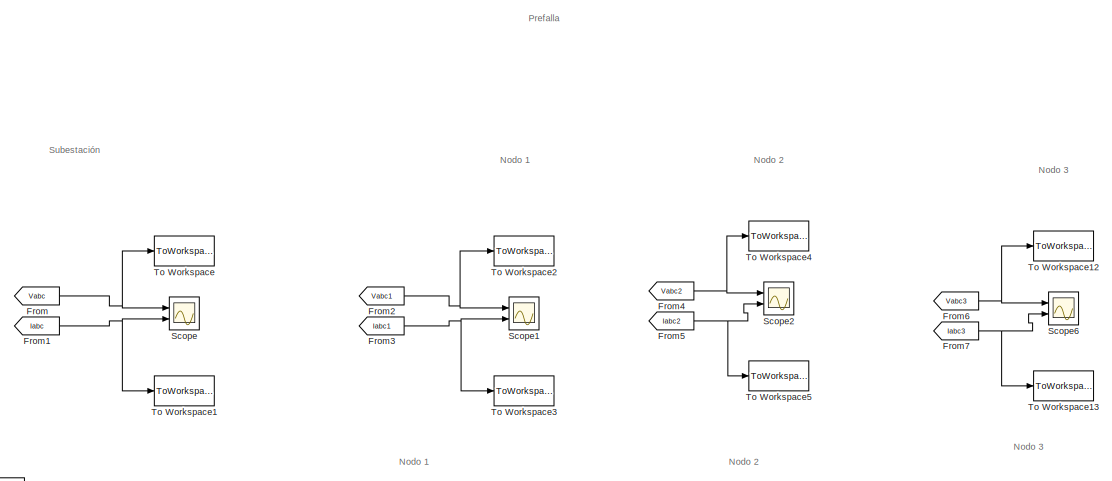
[diagram: root canvas - part 1/5, top center region]
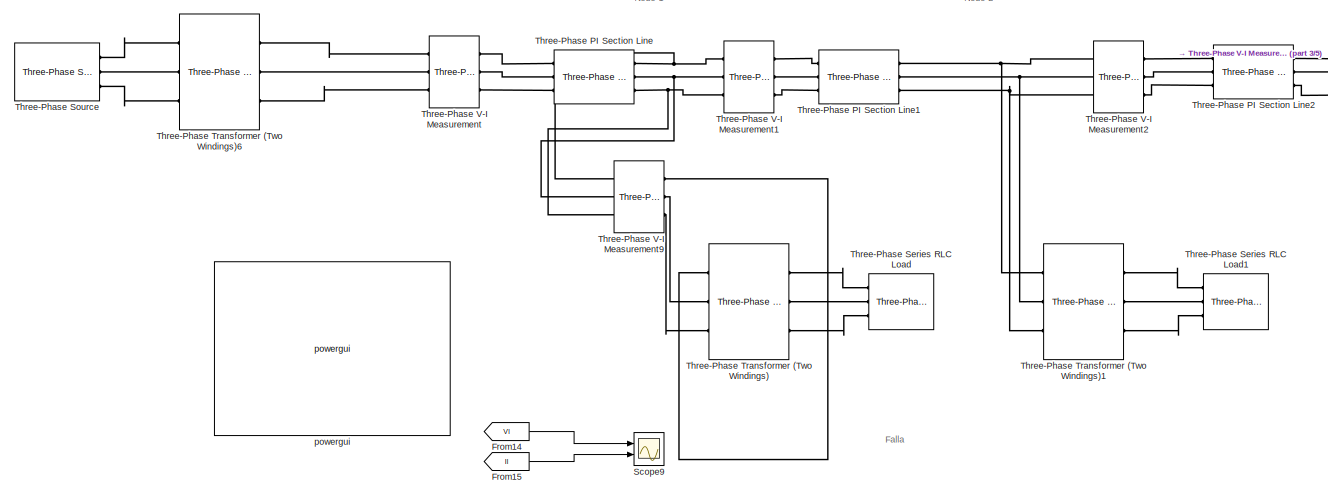
[diagram: root canvas - part 2/5, middle left region]
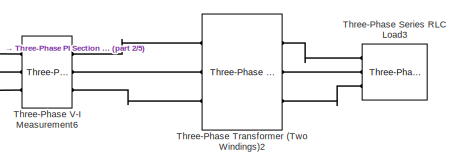
[diagram: root canvas - part 3/5, top right region]
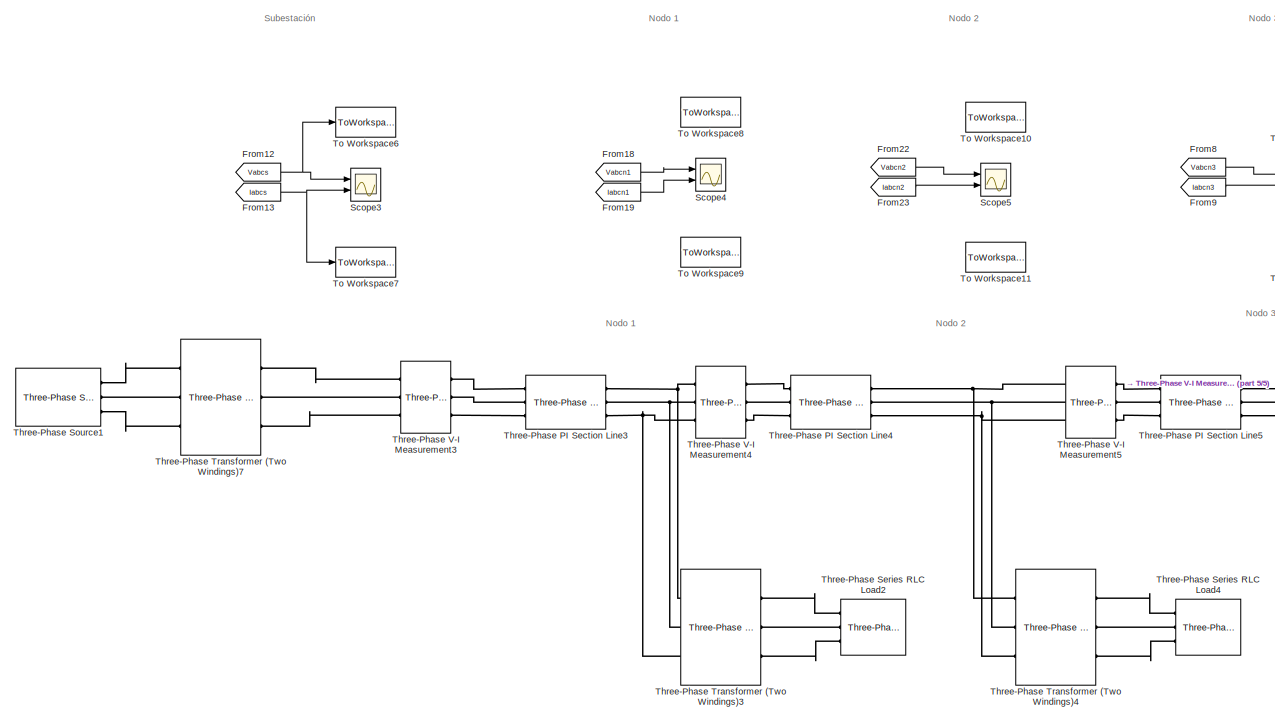
[diagram: root canvas - part 4/5, bottom center region]
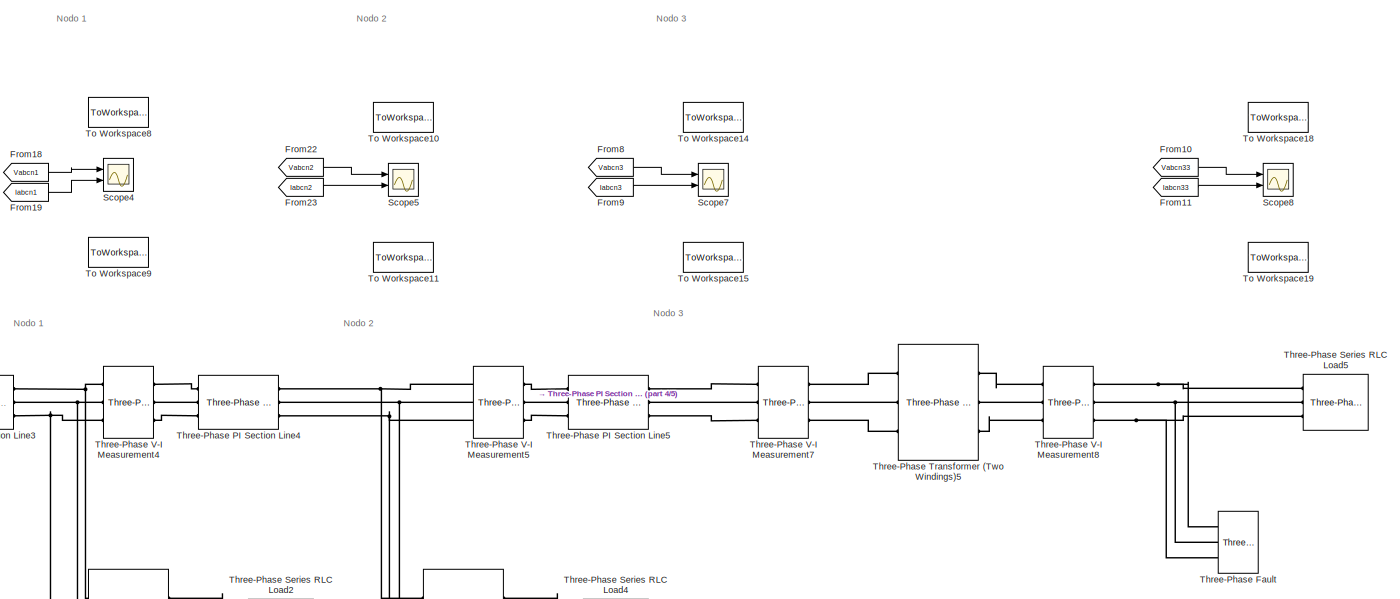
[diagram: root canvas - part 5/5, bottom center region]
MODEL slx_f9ede1e05f8c
KIND model
CONFIG AbsTol = auto
CONFIG FixedStep = auto
CONFIG MaxStep = auto
CONFIG MinStep = auto
CONFIG RelTol = 1e-3
CONFIG SampleTimeConstraint = Unconstrained
CONFIG Solver = ode45
CONFIG SolverMode = Auto
CONFIG SolverName = ode45
CONFIG StartTime = 0.0
CONFIG StopTime = 0.32
BLOCK [From] From
  GotoTag = Vabc
  TagVisibility = global
BLOCK [From] From1
  GotoTag = Iabc
  TagVisibility = global
BLOCK [From] From10
  GotoTag = Vabcn33
  TagVisibility = global
BLOCK [From] From11
  GotoTag = Iabcn33
  TagVisibility = global
BLOCK [From] From12
  GotoTag = Vabcs
  TagVisibility = global
BLOCK [From] From13
  GotoTag = Iabcs
  TagVisibility = global
BLOCK [From] From14
  GotoTag = Vl
  TagVisibility = global
BLOCK [From] From15
  GotoTag = Il
  TagVisibility = global
BLOCK [From] From18
  GotoTag = Vabcn1
  TagVisibility = global
BLOCK [From] From19
  GotoTag = Iabcn1
  TagVisibility = global
BLOCK [From] From2
  GotoTag = Vabc1
  TagVisibility = global
BLOCK [From] From22
  GotoTag = Vabcn2
  TagVisibility = global
BLOCK [From] From23
  GotoTag = Iabcn2
  TagVisibility = global
BLOCK [From] From3
  GotoTag = Iabc1
  TagVisibility = global
BLOCK [From] From4
  GotoTag = Vabc2
  TagVisibility = global
BLOCK [From] From5
  GotoTag = Iabc2
  TagVisibility = global
BLOCK [From] From6
  GotoTag = Vabc3
  TagVisibility = global
BLOCK [From] From7
  GotoTag = Iabc3
  TagVisibility = global
BLOCK [From] From8
  GotoTag = Vabcn3
  TagVisibility = global
BLOCK [From] From9
  GotoTag = Iabcn3
  TagVisibility = global
BLOCK [Scope] Scope
  Floating = off
  NumInputPorts = 2
  Ports = [2]
  TickLabels = on
  YMax = 120000~175
  YMin = -120000~-175
BLOCK [Scope] Scope1
  Floating = off
  NumInputPorts = 2
  Ports = [2]
  SaveName = ScopeData1
  TickLabels = on
  YMax = 5~5
  YMin = -5~-5
BLOCK [Scope] Scope2
  Floating = off
  NumInputPorts = 2
  Ports = [2]
  SaveName = ScopeData2
  TickLabels = on
  YMax = 5~5
  YMin = -5~-5
BLOCK [Scope] Scope3
  Floating = off
  NumInputPorts = 2
  Ports = [2]
  SaveName = ScopeData3
  TickLabels = on
  TimeRange = 0.008286453129078095
  YMax = 109317.9377013964~5
  YMin = 103212.4484142688~-4
BLOCK [Scope] Scope4
  Floating = off
  NumInputPorts = 2
  Ports = [2]
  SaveName = ScopeData4
  TickLabels = on
  YMax = 5~5
  YMin = -5~-5
BLOCK [Scope] Scope5
  Floating = off
  NumInputPorts = 2
  Ports = [2]
  SaveName = ScopeData5
  TickLabels = on
  YMax = 5~5
  YMin = -5~-5
BLOCK [Scope] Scope6
  Floating = off
  NumInputPorts = 2
  Ports = [2]
  SaveName = ScopeData6
  TickLabels = on
  YMax = 5~5
  YMin = -5~-5
BLOCK [Scope] Scope7
  Floating = off
  NumInputPorts = 2
  Ports = [2]
  SaveName = ScopeData7
  TickLabels = on
  YMax = 5~5
  YMin = -5~-5
  ZoomMode = xonly
BLOCK [Scope] Scope8
  Floating = off
  NumInputPorts = 2
  Ports = [2]
  SaveName = ScopeData8
  TickLabels = on
  YMax = 5~5
  YMin = -5~-5
  ZoomMode = xonly
BLOCK [Scope] Scope9
  Floating = off
  NumInputPorts = 2
  Ports = [2]
  SaveName = ScopeData9
  TickLabels = on
  YMax = 5~5
  YMin = -5~-5
BLOCK [Reference] Three-Phase Fault  REF=powerlib/Elements/Three-Phase Fault
  External = off
  FaultA = on
  FaultB = off
  FaultC = off
  FaultResistance = 0.01
  GroundFault = on
  GroundResistance = 0.01
  InitialStates = 0
  Measurements = Fault currents
  Ports = [0, 0, 0, 0, 0, 3]
  SnubberCapacitance = inf
  SnubberResistance = 1e6
  SourceBlock = powerlib/Elements/Three-Phase Fault
  SourceType = Three-Phase Fault
  SwitchStatus = NaN
  SwitchTimes = [0.05  0.30]
BLOCK [Reference] Three-Phase PI Section Line  REF=powerlib/Elements/Three-Phase
PI Section Line
  AttributesFormatString = \n
  Capacitances = [12.74e-9 7.751e-9]
  Frequency = 60
  Inductances = [ 0.9337e-3  4.1264e-3]
  LConnTagsString = a|b|c
  Length = 2
  Ports = [0, 0, 0, 0, 0, 3, 3]
  RConnTagsString = A|B|C
  Resistances = [ 0.01273 0.3864]
  SourceBlock = powerlib/Elements/Three-Phase\nPI Section Line
  SourceType = Three-Phase PI Section Line
BLOCK [Reference] Three-Phase PI Section Line1  REF=powerlib/Elements/Three-Phase
PI Section Line
  AttributesFormatString = \n
  Capacitances = [12.74e-9 7.751e-9]
  Frequency = 60
  Inductances = [ 0.9337e-3  4.1264e-3]
  LConnTagsString = a|b|c
  Length = 1
  Ports = [0, 0, 0, 0, 0, 3, 3]
  RConnTagsString = A|B|C
  Resistances = [ 0.01273 0.3864]
  SourceBlock = powerlib/Elements/Three-Phase\nPI Section Line
  SourceType = Three-Phase PI Section Line
BLOCK [Reference] Three-Phase PI Section Line2  REF=powerlib/Elements/Three-Phase
PI Section Line
  AttributesFormatString = \n
  Capacitances = [12.74e-9 7.751e-9]
  Frequency = 60
  Inductances = [ 0.9337e-3  4.1264e-3]
  LConnTagsString = a|b|c
  Length = 1.5
  Ports = [0, 0, 0, 0, 0, 3, 3]
  RConnTagsString = A|B|C
  Resistances = [ 0.01273 0.3864]
  SourceBlock = powerlib/Elements/Three-Phase\nPI Section Line
  SourceType = Three-Phase PI Section Line
BLOCK [Reference] Three-Phase PI Section Line3  REF=powerlib/Elements/Three-Phase
PI Section Line
  AttributesFormatString = \n
  Capacitances = [12.74e-9 7.751e-9]
  Frequency = 60
  Inductances = [ 0.9337e-3  4.1264e-3]
  LConnTagsString = a|b|c
  Length = 2
  Ports = [0, 0, 0, 0, 0, 3, 3]
  RConnTagsString = A|B|C
  Resistances = [ 0.01273 0.3864]
  SourceBlock = powerlib/Elements/Three-Phase\nPI Section Line
  SourceType = Three-Phase PI Section Line
BLOCK [Reference] Three-Phase PI Section Line4  REF=powerlib/Elements/Three-Phase
PI Section Line
  AttributesFormatString = \n
  Capacitances = [12.74e-9 7.751e-9]
  Frequency = 60
  Inductances = [ 0.9337e-3  4.1264e-3]
  LConnTagsString = a|b|c
  Length = 1
  Ports = [0, 0, 0, 0, 0, 3, 3]
  RConnTagsString = A|B|C
  Resistances = [ 0.01273 0.3864]
  SourceBlock = powerlib/Elements/Three-Phase\nPI Section Line
  SourceType = Three-Phase PI Section Line
BLOCK [Reference] Three-Phase PI Section Line5  REF=powerlib/Elements/Three-Phase
PI Section Line
  AttributesFormatString = \n
  Capacitances = [12.74e-9 7.751e-9]
  Frequency = 60
  Inductances = [ 0.9337e-3  4.1264e-3]
  LConnTagsString = a|b|c
  Length = 1.5
  Ports = [0, 0, 0, 0, 0, 3, 3]
  RConnTagsString = A|B|C
  Resistances = [ 0.01273 0.3864]
  SourceBlock = powerlib/Elements/Three-Phase\nPI Section Line
  SourceType = Three-Phase PI Section Line
BLOCK [Reference] Three-Phase Series RLC Load  REF=powerlib/Elements/Three-Phase
Series RLC Load
  ActivePower = 75e3
  AttributesFormatString = \n
  CapacitivePower = 100
  Configuration = Y (grounded)
  InductivePower = 100
  LConnTagsString = A|B|C
  LoadType = constant Z
  Measurements = None
  NominalFrequency = 60
  NominalVoltage = 13800
  Ports = [0, 0, 0, 0, 0, 3]
  SourceBlock = powerlib/Elements/Three-Phase\nSeries RLC Load
  SourceType = Three-Phase Series RLC Load
BLOCK [Reference] Three-Phase Series RLC Load1  REF=powerlib/Elements/Three-Phase
Series RLC Load
  ActivePower = 75e3
  AttributesFormatString = \n
  CapacitivePower = 100
  Configuration = Y (grounded)
  InductivePower = 100
  LConnTagsString = A|B|C
  LoadType = constant Z
  Measurements = None
  NominalFrequency = 60
  NominalVoltage = 13800
  Ports = [0, 0, 0, 0, 0, 3]
  SourceBlock = powerlib/Elements/Three-Phase\nSeries RLC Load
  SourceType = Three-Phase Series RLC Load
BLOCK [Reference] Three-Phase Series RLC Load2  REF=powerlib/Elements/Three-Phase
Series RLC Load
  ActivePower = 75e3
  AttributesFormatString = \n
  CapacitivePower = 100
  Configuration = Y (grounded)
  InductivePower = 100
  LConnTagsString = A|B|C
  LoadType = constant Z
  Measurements = None
  NominalFrequency = 60
  NominalVoltage = 13800
  Ports = [0, 0, 0, 0, 0, 3]
  SourceBlock = powerlib/Elements/Three-Phase\nSeries RLC Load
  SourceType = Three-Phase Series RLC Load
BLOCK [Reference] Three-Phase Series RLC Load3  REF=powerlib/Elements/Three-Phase
Series RLC Load
  ActivePower = 75e3
  AttributesFormatString = \n
  CapacitivePower = 100
  Configuration = Y (grounded)
  InductivePower = 100
  LConnTagsString = A|B|C
  LoadType = constant Z
  Measurements = None
  NominalFrequency = 60
  NominalVoltage = 13800
  Ports = [0, 0, 0, 0, 0, 3]
  SourceBlock = powerlib/Elements/Three-Phase\nSeries RLC Load
  SourceType = Three-Phase Series RLC Load
BLOCK [Reference] Three-Phase Series RLC Load4  REF=powerlib/Elements/Three-Phase
Series RLC Load
  ActivePower = 75e3
  AttributesFormatString = \n
  CapacitivePower = 100
  Configuration = Y (grounded)
  InductivePower = 100
  LConnTagsString = A|B|C
  LoadType = constant Z
  Measurements = None
  NominalFrequency = 60
  NominalVoltage = 13800
  Ports = [0, 0, 0, 0, 0, 3]
  SourceBlock = powerlib/Elements/Three-Phase\nSeries RLC Load
  SourceType = Three-Phase Series RLC Load
BLOCK [Reference] Three-Phase Series RLC Load5  REF=powerlib/Elements/Three-Phase
Series RLC Load
  ActivePower = 75e3
  AttributesFormatString = \n
  CapacitivePower = 100
  Configuration = Y (grounded)
  InductivePower = 100
  LConnTagsString = A|B|C
  LoadType = constant Z
  Measurements = None
  NominalFrequency = 60
  NominalVoltage = 13800
  Ports = [0, 0, 0, 0, 0, 3]
  SourceBlock = powerlib/Elements/Three-Phase\nSeries RLC Load
  SourceType = Three-Phase Series RLC Load
BLOCK [Reference] Three-Phase Source  REF=powerlib/Electrical
Sources/Three-Phase Source
  BaseVoltage = 13.8
  BusType = swing
  Frequency = 60
  Inductance = 16.58e-3
  InternalConnection = Yg
  PhaseAngle = 0
  Ports = [0, 0, 0, 0, 0, 0, 3]
  Pref = 0
  Qmax = inf
  Qmin = -inf
  Qref = 0
  Resistance = 0.8929
  ShortCircuitLevel = 270e3
  SourceBlock = powerlib/Electrical\nSources/Three-Phase Source
  SourceType = Three-Phase Source
  SpecifyImpedance = on
  Voltage = 13.8e3
  XRratio = 7
BLOCK [Reference] Three-Phase Source1  REF=powerlib/Electrical
Sources/Three-Phase Source
  BaseVoltage = 13.8
  BusType = swing
  Frequency = 60
  Inductance = 16.58e-3
  InternalConnection = Yg
  PhaseAngle = 0
  Ports = [0, 0, 0, 0, 0, 0, 3]
  Pref = 0
  Qmax = inf
  Qmin = -inf
  Qref = 0
  Resistance = 0.8929
  ShortCircuitLevel = 100e6
  SourceBlock = powerlib/Electrical\nSources/Three-Phase Source
  SourceType = Three-Phase Source
  SpecifyImpedance = on
  Voltage = 13.8e3
  XRratio = 7
BLOCK [Reference] Three-Phase Transformer (Two Windings)  REF=powerlib/Elements/Three-Phase
Transformer
(Two Windings)
  BreakLoop = off
  CoreType = Three single-phase transformers
  DataFile = 'hysteresis'
  DataType = off
  Hysteresis = off
  InitialFluxes = [ 0.8 , -0.8 , 0.7 ]
  L0 = 0.5
  Lm = 500
  Measurements = None
  MoreParameters = off
  NominalPower = [ 75e3 , 60 ]
  Ports = [0, 0, 0, 0, 0, 3, 3]
  Rm = 500
  Saturation = [ 0,0 ; 0.0024,1.2 ; 1.0,1.52 ]
  SetInitialFlux = off
  SetSaturation = off
  SourceBlock = powerlib/Elements/Three-Phase\nTransformer\n(Two Windings)
  SourceType = Three-Phase Transformer (Two Windings)
  TransfoNumber = 1
  UNITS = pu
  Winding1 = [ 115e3 , 0.002 , 0.08 ]
  Winding1Connection = Yg
  Winding2 = [ 13.8e3 , 0.002 , 0.08 ]
  Winding2Connection = Yg
BLOCK [Reference] Three-Phase Transformer (Two Windings)1  REF=powerlib/Elements/Three-Phase
Transformer
(Two Windings)
  BreakLoop = off
  CoreType = Three single-phase transformers
  DataFile = 'hysteresis'
  DataType = off
  Hysteresis = off
  InitialFluxes = [ 0.8 , -0.8 , 0.7 ]
  L0 = 0.5
  Lm = 500
  Measurements = None
  MoreParameters = off
  NominalPower = [ 75e3 , 60 ]
  Ports = [0, 0, 0, 0, 0, 3, 3]
  Rm = 500
  Saturation = [ 0,0 ; 0.0024,1.2 ; 1.0,1.52 ]
  SetInitialFlux = off
  SetSaturation = off
  SourceBlock = powerlib/Elements/Three-Phase\nTransformer\n(Two Windings)
  SourceType = Three-Phase Transformer (Two Windings)
  TransfoNumber = 1
  UNITS = pu
  Winding1 = [ 115e3 , 0.002 , 0.08 ]
  Winding1Connection = Yg
  Winding2 = [ 13.8e3 , 0.002 , 0.08 ]
  Winding2Connection = Yg
BLOCK [Reference] Three-Phase Transformer (Two Windings)2  REF=powerlib/Elements/Three-Phase
Transformer
(Two Windings)
  BreakLoop = off
  CoreType = Three single-phase transformers
  DataFile = 'hysteresis'
  DataType = off
  Hysteresis = off
  InitialFluxes = [ 0.8 , -0.8 , 0.7 ]
  L0 = 0.5
  Lm = 500
  Measurements = None
  MoreParameters = off
  NominalPower = [ 75e3 , 60 ]
  Ports = [0, 0, 0, 0, 0, 3, 3]
  Rm = 500
  Saturation = [ 0,0 ; 0.0024,1.2 ; 1.0,1.52 ]
  SetInitialFlux = off
  SetSaturation = off
  SourceBlock = powerlib/Elements/Three-Phase\nTransformer\n(Two Windings)
  SourceType = Three-Phase Transformer (Two Windings)
  TransfoNumber = 1
  UNITS = pu
  Winding1 = [ 115e3 , 0.002 , 0.08 ]
  Winding1Connection = Yg
  Winding2 = [ 13.8e3 , 0.002 , 0.08 ]
  Winding2Connection = Yg
BLOCK [Reference] Three-Phase Transformer (Two Windings)3  REF=powerlib/Elements/Three-Phase
Transformer
(Two Windings)
  BreakLoop = off
  CoreType = Three single-phase transformers
  DataFile = 'hysteresis'
  DataType = off
  Hysteresis = off
  InitialFluxes = [ 0.8 , -0.8 , 0.7 ]
  L0 = 0.5
  Lm = 500
  Measurements = None
  MoreParameters = off
  NominalPower = [ 75e3 , 60 ]
  Ports = [0, 0, 0, 0, 0, 3, 3]
  Rm = 500
  Saturation = [ 0,0 ; 0.0024,1.2 ; 1.0,1.52 ]
  SetInitialFlux = off
  SetSaturation = off
  SourceBlock = powerlib/Elements/Three-Phase\nTransformer\n(Two Windings)
  SourceType = Three-Phase Transformer (Two Windings)
  TransfoNumber = 1
  UNITS = pu
  Winding1 = [ 115e3 , 0.002 , 0.08 ]
  Winding1Connection = Yg
  Winding2 = [ 13.8e3 , 0.002 , 0.08 ]
  Winding2Connection = Yg
BLOCK [Reference] Three-Phase Transformer (Two Windings)4  REF=powerlib/Elements/Three-Phase
Transformer
(Two Windings)
  BreakLoop = off
  CoreType = Three single-phase transformers
  DataFile = 'hysteresis'
  DataType = off
  Hysteresis = off
  InitialFluxes = [ 0.8 , -0.8 , 0.7 ]
  L0 = 0.5
  Lm = 500
  Measurements = None
  MoreParameters = off
  NominalPower = [ 75e3, 60 ]
  Ports = [0, 0, 0, 0, 0, 3, 3]
  Rm = 500
  Saturation = [ 0,0 ; 0.0024,1.2 ; 1.0,1.52 ]
  SetInitialFlux = off
  SetSaturation = off
  SourceBlock = powerlib/Elements/Three-Phase\nTransformer\n(Two Windings)
  SourceType = Three-Phase Transformer (Two Windings)
  TransfoNumber = 1
  UNITS = pu
  Winding1 = [ 115e3 , 0.002 , 0.08 ]
  Winding1Connection = Yg
  Winding2 = [ 13.8e3 , 0.002 , 0.08 ]
  Winding2Connection = Yg
BLOCK [Reference] Three-Phase Transformer (Two Windings)5  REF=powerlib/Elements/Three-Phase
Transformer
(Two Windings)
  BreakLoop = off
  CoreType = Three single-phase transformers
  DataFile = 'hysteresis'
  DataType = off
  Hysteresis = off
  InitialFluxes = [ 0.8 , -0.8 , 0.7 ]
  L0 = 0.5
  Lm = 500
  Measurements = None
  MoreParameters = off
  NominalPower = [ 75e3 , 60 ]
  Ports = [0, 0, 0, 0, 0, 3, 3]
  Rm = 500
  Saturation = [ 0,0 ; 0.0024,1.2 ; 1.0,1.52 ]
  SetInitialFlux = off
  SetSaturation = off
  SourceBlock = powerlib/Elements/Three-Phase\nTransformer\n(Two Windings)
  SourceType = Three-Phase Transformer (Two Windings)
  TransfoNumber = 1
  UNITS = pu
  Winding1 = [ 115e3 , 0.002 , 0.08 ]
  Winding1Connection = Yg
  Winding2 = [ 13.8e3 , 0.002 , 0.08 ]
  Winding2Connection = Yg
BLOCK [Reference] Three-Phase Transformer (Two Windings)6  REF=powerlib/Elements/Three-Phase
Transformer
(Two Windings)
  BreakLoop = off
  CoreType = Three single-phase transformers
  DataFile = 'hysteresis'
  DataType = off
  Hysteresis = off
  InitialFluxes = [ 0.8 , -0.8 , 0.7 ]
  L0 = 0.5
  Lm = 500
  Measurements = None
  MoreParameters = off
  NominalPower = [270e3 , 60 ]
  Ports = [0, 0, 0, 0, 0, 3, 3]
  Rm = 500
  Saturation = [ 0,0 ; 0.0024,1.2 ; 1.0,1.52 ]
  SetInitialFlux = off
  SetSaturation = off
  SourceBlock = powerlib/Elements/Three-Phase\nTransformer\n(Two Windings)
  SourceType = Three-Phase Transformer (Two Windings)
  TransfoNumber = 1
  UNITS = pu
  Winding1 = [ 13.8e3 , 0.002 , 0.08 ]
  Winding1Connection = Yg
  Winding2 = [ 115e3, 0.002 , 0.08 ]
  Winding2Connection = Yg
BLOCK [Reference] Three-Phase Transformer (Two Windings)7  REF=powerlib/Elements/Three-Phase
Transformer
(Two Windings)
  BreakLoop = off
  CoreType = Three single-phase transformers
  DataFile = 'hysteresis'
  DataType = off
  Hysteresis = off
  InitialFluxes = [0.80001 -0.80001 0.7]
  L0 = 0.5
  Lm = 500
  Measurements = None
  MoreParameters = off
  NominalPower = [270e3 , 60 ]
  Ports = [0, 0, 0, 0, 0, 3, 3]
  Rm = 500
  Saturation = [0 0;0.0024 1.2;0.99999 1.52]
  SetInitialFlux = off
  SetSaturation = off
  SourceBlock = powerlib/Elements/Three-Phase\nTransformer\n(Two Windings)
  SourceType = Three-Phase Transformer (Two Windings)
  TransfoNumber = 1
  UNITS = pu
  Winding1 = [13800 0.002 0.080001]
  Winding1Connection = Yg
  Winding2 = [1.15e+05 0.002 0.079999]
  Winding2Connection = Yg
BLOCK [Reference] Three-Phase V-I Measurement  REF=powerlib/Measurements/Three-Phase
V-I Measurement
  CurrentMeasurement = yes
  Ipu = off
  LabelI = Iabc
  LabelV = Vabc
  OutputType = Complex
  PSBequivalent = 0
  Pbase = 100e6
  PhasorSimulation = off
  Ports = [0, 0, 0, 0, 0, 3, 3]
  SetLabelI = on
  SetLabelV = on
  SourceBlock = powerlib/Measurements/Three-Phase\nV-I Measurement
  SourceType = Three-Phase VI Measurement
  Vbase = 500e3
  VoltageMeasurement = phase-to-ground
  Vpu = off
  VpuLL = off
BLOCK [Reference] Three-Phase V-I Measurement1  REF=powerlib/Measurements/Three-Phase
V-I Measurement
  CurrentMeasurement = yes
  Ipu = off
  LabelI = Iabc1
  LabelV = Vabc1
  OutputType = Complex
  PSBequivalent = 0
  Pbase = 100e6
  PhasorSimulation = off
  Ports = [0, 0, 0, 0, 0, 3, 3]
  SetLabelI = on
  SetLabelV = on
  SourceBlock = powerlib/Measurements/Three-Phase\nV-I Measurement
  SourceType = Three-Phase VI Measurement
  Vbase = 500e3
  VoltageMeasurement = phase-to-ground
  Vpu = off
  VpuLL = off
BLOCK [Reference] Three-Phase V-I Measurement2  REF=powerlib/Measurements/Three-Phase
V-I Measurement
  CurrentMeasurement = yes
  Ipu = off
  LabelI = Iabc2
  LabelV = Vabc2
  OutputType = Complex
  PSBequivalent = 0
  Pbase = 100e6
  PhasorSimulation = off
  Ports = [0, 0, 0, 0, 0, 3, 3]
  SetLabelI = on
  SetLabelV = on
  SourceBlock = powerlib/Measurements/Three-Phase\nV-I Measurement
  SourceType = Three-Phase VI Measurement
  Vbase = 500e3
  VoltageMeasurement = phase-to-ground
  Vpu = off
  VpuLL = off
BLOCK [Reference] Three-Phase V-I Measurement3  REF=powerlib/Measurements/Three-Phase
V-I Measurement
  CurrentMeasurement = yes
  Ipu = off
  LabelI = Iabcs
  LabelV = Vabcs
  OutputType = Complex
  PSBequivalent = 0
  Pbase = 100e6
  PhasorSimulation = off
  Ports = [0, 0, 0, 0, 0, 3, 3]
  SetLabelI = on
  SetLabelV = on
  SourceBlock = powerlib/Measurements/Three-Phase\nV-I Measurement
  SourceType = Three-Phase VI Measurement
  Vbase = 500e3
  VoltageMeasurement = phase-to-ground
  Vpu = off
  VpuLL = off
BLOCK [Reference] Three-Phase V-I Measurement4  REF=powerlib/Measurements/Three-Phase
V-I Measurement
  CurrentMeasurement = yes
  Ipu = off
  LabelI = Iabcn1
  LabelV = Vabcn1
  OutputType = Complex
  PSBequivalent = 0
  Pbase = 100e6
  PhasorSimulation = off
  Ports = [0, 0, 0, 0, 0, 3, 3]
  SetLabelI = on
  SetLabelV = on
  SourceBlock = powerlib/Measurements/Three-Phase\nV-I Measurement
  SourceType = Three-Phase VI Measurement
  Vbase = 500e3
  VoltageMeasurement = phase-to-ground
  Vpu = off
  VpuLL = off
BLOCK [Reference] Three-Phase V-I Measurement5  REF=powerlib/Measurements/Three-Phase
V-I Measurement
  CurrentMeasurement = yes
  Ipu = off
  LabelI = Iabcn2
  LabelV = Vabcn2
  OutputType = Complex
  PSBequivalent = 0
  Pbase = 100e6
  PhasorSimulation = off
  Ports = [0, 0, 0, 0, 0, 3, 3]
  SetLabelI = on
  SetLabelV = on
  SourceBlock = powerlib/Measurements/Three-Phase\nV-I Measurement
  SourceType = Three-Phase VI Measurement
  Vbase = 500e3
  VoltageMeasurement = phase-to-ground
  Vpu = off
  VpuLL = off
BLOCK [Reference] Three-Phase V-I Measurement6  REF=powerlib/Measurements/Three-Phase
V-I Measurement
  CurrentMeasurement = yes
  Ipu = off
  LabelI = Iabc3
  LabelV = Vabc3
  OutputType = Complex
  PSBequivalent = 0
  Pbase = 100e6
  PhasorSimulation = off
  Ports = [0, 0, 0, 0, 0, 3, 3]
  SetLabelI = on
  SetLabelV = on
  SourceBlock = powerlib/Measurements/Three-Phase\nV-I Measurement
  SourceType = Three-Phase VI Measurement
  Vbase = 500e3
  VoltageMeasurement = phase-to-ground
  Vpu = off
  VpuLL = off
BLOCK [Reference] Three-Phase V-I Measurement7  REF=powerlib/Measurements/Three-Phase
V-I Measurement
  CurrentMeasurement = yes
  Ipu = off
  LabelI = Iabcn3
  LabelV = Vabcn3
  OutputType = Complex
  PSBequivalent = 0
  Pbase = 100e6
  PhasorSimulation = off
  Ports = [0, 0, 0, 0, 0, 3, 3]
  SetLabelI = on
  SetLabelV = on
  SourceBlock = powerlib/Measurements/Three-Phase\nV-I Measurement
  SourceType = Three-Phase VI Measurement
  Vbase = 500e3
  VoltageMeasurement = phase-to-ground
  Vpu = off
  VpuLL = off
BLOCK [Reference] Three-Phase V-I Measurement8  REF=powerlib/Measurements/Three-Phase
V-I Measurement
  CurrentMeasurement = yes
  Ipu = off
  LabelI = Iabcn33
  LabelV = Vabcn33
  OutputType = Complex
  PSBequivalent = 0
  Pbase = 100e6
  PhasorSimulation = off
  Ports = [0, 0, 0, 0, 0, 3, 3]
  SetLabelI = on
  SetLabelV = on
  SourceBlock = powerlib/Measurements/Three-Phase\nV-I Measurement
  SourceType = Three-Phase VI Measurement
  Vbase = 500e3
  VoltageMeasurement = phase-to-ground
  Vpu = off
  VpuLL = off
BLOCK [Reference] Three-Phase V-I Measurement9  REF=powerlib/Measurements/Three-Phase
V-I Measurement
  CurrentMeasurement = yes
  Ipu = off
  LabelI = Il
  LabelV = Vl
  OutputType = Complex
  PSBequivalent = 0
  Pbase = 100e6
  PhasorSimulation = off
  Ports = [0, 0, 0, 0, 0, 3, 3]
  SetLabelI = on
  SetLabelV = on
  SourceBlock = powerlib/Measurements/Three-Phase\nV-I Measurement
  SourceType = Three-Phase VI Measurement
  Vbase = 500e3
  VoltageMeasurement = phase-to-ground
  Vpu = off
  VpuLL = off
BLOCK [ToWorkspace] To Workspace
  FixptAsFi = on
  MaxDataPoints = inf
  Ports = [1]
  SampleTime = -1
  Save2DSignal = 3-D array (concatenate along third dimension)
  VariableName = vs
BLOCK [ToWorkspace] To Workspace1
  FixptAsFi = on
  MaxDataPoints = inf
  Ports = [1]
  SampleTime = -1
  Save2DSignal = 3-D array (concatenate along third dimension)
  VariableName = is
BLOCK [ToWorkspace] To Workspace10
  FixptAsFi = on
  MaxDataPoints = inf
  Ports = [1]
  SampleTime = -1
  Save2DSignal = 3-D array (concatenate along third dimension)
  VariableName = v2pos
BLOCK [ToWorkspace] To Workspace11
  FixptAsFi = on
  MaxDataPoints = inf
  Ports = [1]
  SampleTime = -1
  Save2DSignal = 3-D array (concatenate along third dimension)
  VariableName = i2pos
BLOCK [ToWorkspace] To Workspace12
  FixptAsFi = on
  MaxDataPoints = inf
  Ports = [1]
  SampleTime = -1
  Save2DSignal = 3-D array (concatenate along third dimension)
  VariableName = v3
BLOCK [ToWorkspace] To Workspace13
  FixptAsFi = on
  MaxDataPoints = inf
  Ports = [1]
  SampleTime = -1
  Save2DSignal = 3-D array (concatenate along third dimension)
  VariableName = i3
BLOCK [ToWorkspace] To Workspace14
  FixptAsFi = on
  MaxDataPoints = inf
  Ports = [1]
  SampleTime = -1
  Save2DSignal = 3-D array (concatenate along third dimension)
  VariableName = v3pos
BLOCK [ToWorkspace] To Workspace15
  FixptAsFi = on
  MaxDataPoints = inf
  Ports = [1]
  SampleTime = -1
  Save2DSignal = 3-D array (concatenate along third dimension)
  VariableName = i3pos
BLOCK [ToWorkspace] To Workspace18
  FixptAsFi = on
  MaxDataPoints = inf
  Ports = [1]
  SampleTime = -1
  Save2DSignal = 3-D array (concatenate along third dimension)
  VariableName = v3pos1
BLOCK [ToWorkspace] To Workspace19
  FixptAsFi = on
  MaxDataPoints = inf
  Ports = [1]
  SampleTime = -1
  Save2DSignal = 3-D array (concatenate along third dimension)
  VariableName = i3pos1
BLOCK [ToWorkspace] To Workspace2
  FixptAsFi = on
  MaxDataPoints = inf
  Ports = [1]
  SampleTime = -1
  Save2DSignal = 3-D array (concatenate along third dimension)
  VariableName = v1
BLOCK [ToWorkspace] To Workspace3
  FixptAsFi = on
  MaxDataPoints = inf
  Ports = [1]
  SampleTime = -1
  Save2DSignal = 3-D array (concatenate along third dimension)
  VariableName = i1
BLOCK [ToWorkspace] To Workspace4
  FixptAsFi = on
  MaxDataPoints = inf
  Ports = [1]
  SampleTime = -1
  Save2DSignal = 3-D array (concatenate along third dimension)
  VariableName = v2
BLOCK [ToWorkspace] To Workspace5
  FixptAsFi = on
  MaxDataPoints = inf
  Ports = [1]
  SampleTime = -1
  Save2DSignal = 3-D array (concatenate along third dimension)
  VariableName = i2
BLOCK [ToWorkspace] To Workspace6
  FixptAsFi = on
  MaxDataPoints = inf
  Ports = [1]
  SampleTime = -1
  Save2DSignal = 3-D array (concatenate along third dimension)
  VariableName = vpos
BLOCK [ToWorkspace] To Workspace7
  FixptAsFi = on
  MaxDataPoints = inf
  Ports = [1]
  SampleTime = -1
  Save2DSignal = 3-D array (concatenate along third dimension)
  VariableName = ipos
BLOCK [ToWorkspace] To Workspace8
  FixptAsFi = on
  MaxDataPoints = inf
  Ports = [1]
  SampleTime = -1
  Save2DSignal = 3-D array (concatenate along third dimension)
  VariableName = v1pos
BLOCK [ToWorkspace] To Workspace9
  FixptAsFi = on
  MaxDataPoints = inf
  Ports = [1]
  SampleTime = -1
  Save2DSignal = 3-D array (concatenate along third dimension)
  VariableName = i1pos
BLOCK [Reference] powergui  REF=powerlib/powergui
  DisableRonSwitches = off
  DisableSnubberDevices = off
  DisableVfSwitches = off
  DisplayEquations = off
  DisplayStyle = 1
  EnableUseOfTLC = off
  ErrMax = 1e-4
  Frange = [0:2:500]
  FreqAxis = off
  FunctionMessages = off
  HookPort = off
  Interpol = off
  Iterations = 50
  MaxFrequency = 1000
  Pbase = 100e6
  Ports = []
  Priority = 1
  ResistiveCurrentMeasurement = off
  RestoreLinks = warning
  RmsSteady = 1
  SPID = off
  SampleTime = 5.208333e-4
  ShowGrid = off
  SolverType = Tustin
  SourceBlock = powerlib/powergui
  SourceType = PSB option menu block
  StartTime = 0.0
  SwTol = 0
  Ts = 0
  UnitsV = kV
  UnitsW = MW
  UserDataPersistent = on
  Xlog = on
  Ylog = off
  ZoomFFT = off
  buscounter = 0
  cycles = 1
  display = off
  echomessages = off
  frequency = 60
  frequencyindice = 60
  frequencyindicesteady = 1
  fundamental = 60
  methode = off
  save = off
  structure = 0
  variable = ZData
  x0status = blocks
ANNOTATION (root): Nodo 1
ANNOTATION (root): Nodo 2
ANNOTATION (root): Nodo 3
ANNOTATION (root): Subestación
ANNOTATION (root): Falla
ANNOTATION (root): Prefalla
LINE From10:1 -> Scope8:1
LINE From11:1 -> Scope8:2
NET From12:1 -> Scope3:1, To Workspace6:1
NET From13:1 -> Scope3:2, To Workspace7:1
LINE From14:1 -> Scope9:1
LINE From15:1 -> Scope9:2
LINE From18:1 -> Scope4:1
LINE From19:1 -> Scope4:2
NET From1:1 -> Scope:2, To Workspace1:1
LINE From22:1 -> Scope5:1
LINE From23:1 -> Scope5:2
NET From2:1 -> Scope1:1, To Workspace2:1
NET From3:1 -> Scope1:2, To Workspace3:1
NET From4:1 -> Scope2:1, To Workspace4:1
NET From5:1 -> Scope2:2, To Workspace5:1
NET From6:1 -> Scope6:1, To Workspace12:1
NET From7:1 -> Scope6:2, To Workspace13:1
LINE From8:1 -> Scope7:1
LINE From9:1 -> Scope7:2
NET From:1 -> Scope:1, To Workspace:1
PNET net1: Three-Phase Fault:LConn1 -- Three-Phase Series RLC Load5:LConn1 -- Three-Phase V-I Measurement8:RConn1
PNET net2: Three-Phase Fault:LConn2 -- Three-Phase Series RLC Load5:LConn2 -- Three-Phase V-I Measurement8:RConn2
PNET net3: Three-Phase Fault:LConn3 -- Three-Phase Series RLC Load5:LConn3 -- Three-Phase V-I Measurement8:RConn3
PLINE Three-Phase PI Section Line1:LConn1 -- Three-Phase V-I Measurement1:RConn1
PLINE Three-Phase PI Section Line1:LConn2 -- Three-Phase V-I Measurement1:RConn2
PLINE Three-Phase PI Section Line1:LConn3 -- Three-Phase V-I Measurement1:RConn3
PNET net4: Three-Phase PI Section Line1:RConn1 -- Three-Phase Transformer (Two Windings)1:LConn1 -- Three-Phase V-I Measurement2:LConn1
PNET net5: Three-Phase PI Section Line1:RConn2 -- Three-Phase Transformer (Two Windings)1:LConn2 -- Three-Phase V-I Measurement2:LConn2
PNET net6: Three-Phase PI Section Line1:RConn3 -- Three-Phase Transformer (Two Windings)1:LConn3 -- Three-Phase V-I Measurement2:LConn3
PLINE Three-Phase PI Section Line2:LConn1 -- Three-Phase V-I Measurement2:RConn1
PLINE Three-Phase PI Section Line2:LConn2 -- Three-Phase V-I Measurement2:RConn2
PLINE Three-Phase PI Section Line2:LConn3 -- Three-Phase V-I Measurement2:RConn3
PLINE Three-Phase PI Section Line2:RConn1 -- Three-Phase V-I Measurement6:LConn1
PLINE Three-Phase PI Section Line2:RConn2 -- Three-Phase V-I Measurement6:LConn2
PLINE Three-Phase PI Section Line2:RConn3 -- Three-Phase V-I Measurement6:LConn3
PLINE Three-Phase PI Section Line3:LConn1 -- Three-Phase V-I Measurement3:RConn1
PLINE Three-Phase PI Section Line3:LConn2 -- Three-Phase V-I Measurement3:RConn2
PLINE Three-Phase PI Section Line3:LConn3 -- Three-Phase V-I Measurement3:RConn3
PNET net7: Three-Phase PI Section Line3:RConn1 -- Three-Phase Transformer (Two Windings)3:LConn1 -- Three-Phase V-I Measurement4:LConn1
PNET net8: Three-Phase PI Section Line3:RConn2 -- Three-Phase Transformer (Two Windings)3:LConn2 -- Three-Phase V-I Measurement4:LConn2
PNET net9: Three-Phase PI Section Line3:RConn3 -- Three-Phase Transformer (Two Windings)3:LConn3 -- Three-Phase V-I Measurement4:LConn3
PLINE Three-Phase PI Section Line4:LConn1 -- Three-Phase V-I Measurement4:RConn1
PLINE Three-Phase PI Section Line4:LConn2 -- Three-Phase V-I Measurement4:RConn2
PLINE Three-Phase PI Section Line4:LConn3 -- Three-Phase V-I Measurement4:RConn3
PNET net10: Three-Phase PI Section Line4:RConn1 -- Three-Phase Transformer (Two Windings)4:LConn1 -- Three-Phase V-I Measurement5:LConn1
PNET net11: Three-Phase PI Section Line4:RConn2 -- Three-Phase Transformer (Two Windings)4:LConn2 -- Three-Phase V-I Measurement5:LConn2
PNET net12: Three-Phase PI Section Line4:RConn3 -- Three-Phase Transformer (Two Windings)4:LConn3 -- Three-Phase V-I Measurement5:LConn3
PLINE Three-Phase PI Section Line5:LConn1 -- Three-Phase V-I Measurement5:RConn1
PLINE Three-Phase PI Section Line5:LConn2 -- Three-Phase V-I Measurement5:RConn2
PLINE Three-Phase PI Section Line5:LConn3 -- Three-Phase V-I Measurement5:RConn3
PLINE Three-Phase PI Section Line5:RConn1 -- Three-Phase V-I Measurement7:LConn1
PLINE Three-Phase PI Section Line5:RConn2 -- Three-Phase V-I Measurement7:LConn2
PLINE Three-Phase PI Section Line5:RConn3 -- Three-Phase V-I Measurement7:LConn3
PLINE Three-Phase PI Section Line:LConn1 -- Three-Phase V-I Measurement:RConn1
PLINE Three-Phase PI Section Line:LConn2 -- Three-Phase V-I Measurement:RConn2
PLINE Three-Phase PI Section Line:LConn3 -- Three-Phase V-I Measurement:RConn3
PNET net13: Three-Phase PI Section Line:RConn1 -- Three-Phase V-I Measurement1:LConn1 -- Three-Phase V-I Measurement9:LConn1
PNET net14: Three-Phase PI Section Line:RConn2 -- Three-Phase V-I Measurement1:LConn2 -- Three-Phase V-I Measurement9:LConn2
PNET net15: Three-Phase PI Section Line:RConn3 -- Three-Phase V-I Measurement1:LConn3 -- Three-Phase V-I Measurement9:LConn3
PLINE Three-Phase Series RLC Load1:LConn1 -- Three-Phase Transformer (Two Windings)1:RConn1
PLINE Three-Phase Series RLC Load1:LConn2 -- Three-Phase Transformer (Two Windings)1:RConn2
PLINE Three-Phase Series RLC Load1:LConn3 -- Three-Phase Transformer (Two Windings)1:RConn3
PLINE Three-Phase Series RLC Load2:LConn1 -- Three-Phase Transformer (Two Windings)3:RConn1
PLINE Three-Phase Series RLC Load2:LConn2 -- Three-Phase Transformer (Two Windings)3:RConn2
PLINE Three-Phase Series RLC Load2:LConn3 -- Three-Phase Transformer (Two Windings)3:RConn3
PLINE Three-Phase Series RLC Load3:LConn1 -- Three-Phase Transformer (Two Windings)2:RConn1
PLINE Three-Phase Series RLC Load3:LConn2 -- Three-Phase Transformer (Two Windings)2:RConn2
PLINE Three-Phase Series RLC Load3:LConn3 -- Three-Phase Transformer (Two Windings)2:RConn3
PLINE Three-Phase Series RLC Load4:LConn1 -- Three-Phase Transformer (Two Windings)4:RConn1
PLINE Three-Phase Series RLC Load4:LConn2 -- Three-Phase Transformer (Two Windings)4:RConn2
PLINE Three-Phase Series RLC Load4:LConn3 -- Three-Phase Transformer (Two Windings)4:RConn3
PLINE Three-Phase Series RLC Load:LConn1 -- Three-Phase Transformer (Two Windings):RConn1
PLINE Three-Phase Series RLC Load:LConn2 -- Three-Phase Transformer (Two Windings):RConn2
PLINE Three-Phase Series RLC Load:LConn3 -- Three-Phase Transformer (Two Windings):RConn3
PLINE Three-Phase Source1:RConn1 -- Three-Phase Transformer (Two Windings)7:LConn1
PLINE Three-Phase Source1:RConn2 -- Three-Phase Transformer (Two Windings)7:LConn2
PLINE Three-Phase Source1:RConn3 -- Three-Phase Transformer (Two Windings)7:LConn3
PLINE Three-Phase Source:RConn1 -- Three-Phase Transformer (Two Windings)6:LConn1
PLINE Three-Phase Source:RConn2 -- Three-Phase Transformer (Two Windings)6:LConn2
PLINE Three-Phase Source:RConn3 -- Three-Phase Transformer (Two Windings)6:LConn3
PLINE Three-Phase Transformer (Two Windings)2:LConn1 -- Three-Phase V-I Measurement6:RConn1
PLINE Three-Phase Transformer (Two Windings)2:LConn2 -- Three-Phase V-I Measurement6:RConn2
PLINE Three-Phase Transformer (Two Windings)2:LConn3 -- Three-Phase V-I Measurement6:RConn3
PLINE Three-Phase Transformer (Two Windings)5:LConn1 -- Three-Phase V-I Measurement7:RConn1
PLINE Three-Phase Transformer (Two Windings)5:LConn2 -- Three-Phase V-I Measurement7:RConn2
PLINE Three-Phase Transformer (Two Windings)5:LConn3 -- Three-Phase V-I Measurement7:RConn3
PLINE Three-Phase Transformer (Two Windings)5:RConn1 -- Three-Phase V-I Measurement8:LConn1
PLINE Three-Phase Transformer (Two Windings)5:RConn2 -- Three-Phase V-I Measurement8:LConn2
PLINE Three-Phase Transformer (Two Windings)5:RConn3 -- Three-Phase V-I Measurement8:LConn3
PLINE Three-Phase Transformer (Two Windings)6:RConn1 -- Three-Phase V-I Measurement:LConn1
PLINE Three-Phase Transformer (Two Windings)6:RConn2 -- Three-Phase V-I Measurement:LConn2
PLINE Three-Phase Transformer (Two Windings)6:RConn3 -- Three-Phase V-I Measurement:LConn3
PLINE Three-Phase Transformer (Two Windings)7:RConn1 -- Three-Phase V-I Measurement3:LConn1
PLINE Three-Phase Transformer (Two Windings)7:RConn2 -- Three-Phase V-I Measurement3:LConn2
PLINE Three-Phase Transformer (Two Windings)7:RConn3 -- Three-Phase V-I Measurement3:LConn3
PLINE Three-Phase Transformer (Two Windings):LConn1 -- Three-Phase V-I Measurement9:RConn1
PLINE Three-Phase Transformer (Two Windings):LConn2 -- Three-Phase V-I Measurement9:RConn2
PLINE Three-Phase Transformer (Two Windings):LConn3 -- Three-Phase V-I Measurement9:RConn3
note: NET lines group one-source signal fan-out (src -> all destinations, sorted); 1:1 wires keep LINE; PNET lines group multi-terminal physical nets as a canonical sorted terminal list (undirected conserving connections); 2-terminal nets keep the pairwise PLINE form
